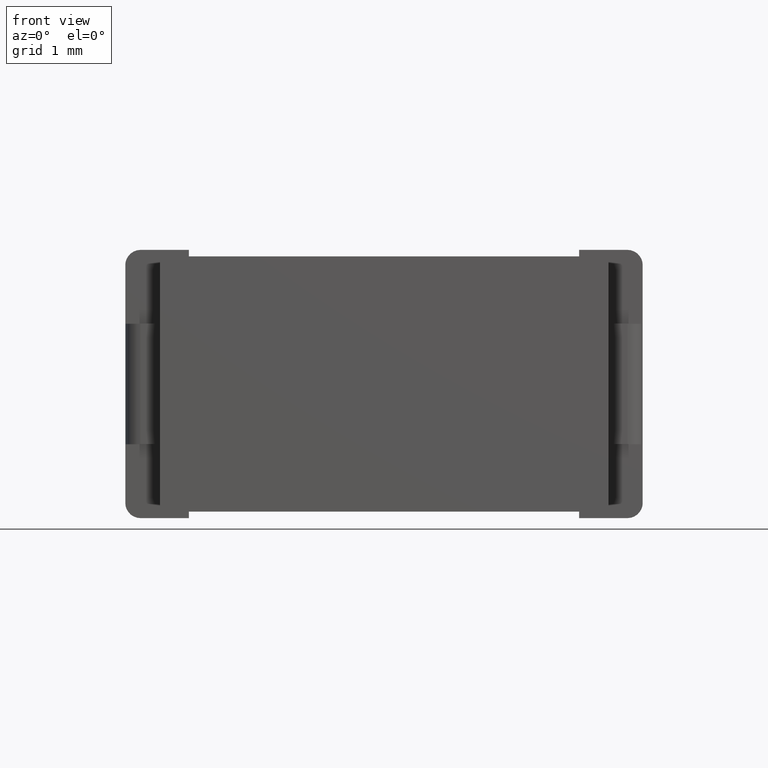
[diagram: clean part render]
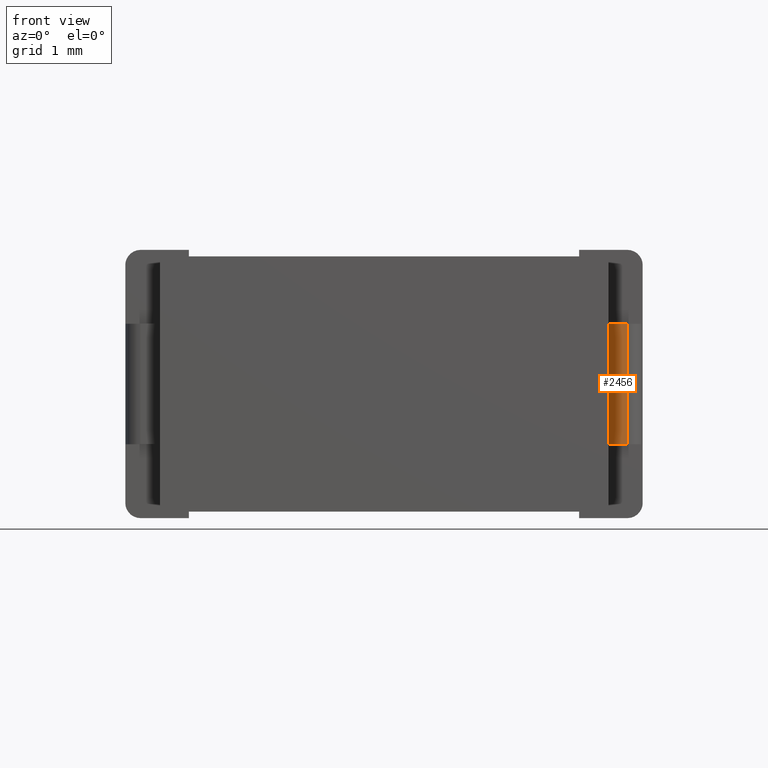
[diagram: same view with one face highlighted and labeled with its STEP entity id]
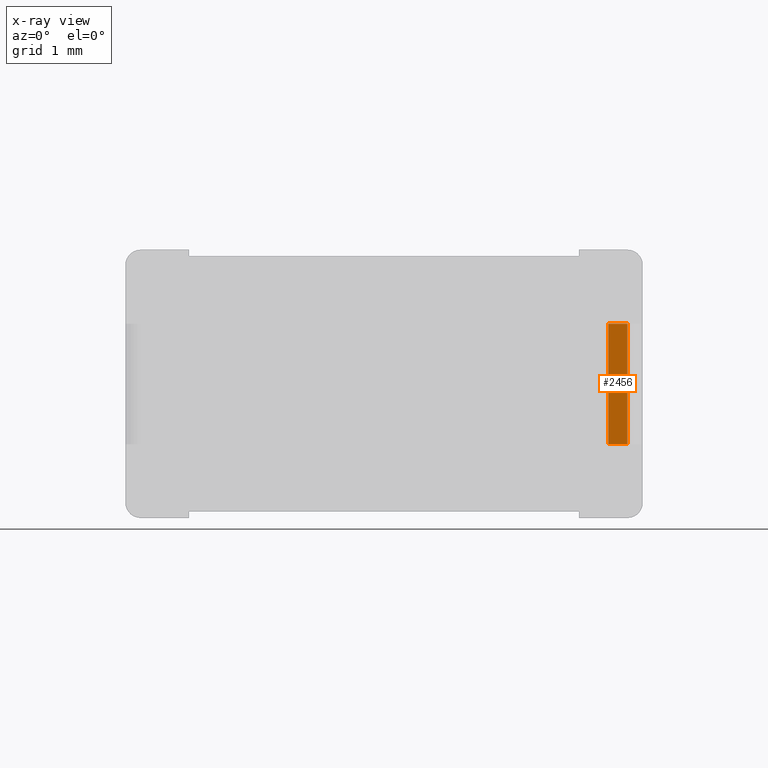
[diagram: x-ray of the same camera — body ghosted, the highlighted face saturated]
A machine part, front view. The second image highlights one B-rep face of the part: STEP entity #2456.
The next image is the same camera in x-ray: the body ghosted, the highlighted face saturated — about 0% of this face is hidden behind the body in this view.
In plain terms, the highlighted planar face has unit normal (0, -1, 0).
Its self-contained STEP definition (entity closure, byte-faithful):
#80 = DIRECTION ( 'NONE',  ( 0.000000000000000000, 0.000000000000000000, -1.000000000000000000 ) ) ;
#240 = ORIENTED_EDGE ( 'NONE', *, *, #3551, .T. ) ;
#270 = VECTOR ( 'NONE', #80, 1000.000000000000000 ) ;
#519 = DIRECTION ( 'NONE',  ( 0.000000000000000000, -0.000000000000000000, -1.000000000000000000 ) ) ;
#539 = VERTEX_POINT ( 'NONE', #1418 ) ;
#711 = VECTOR ( 'NONE', #4590, 1000.000000000000000 ) ;
#764 = EDGE_LOOP ( 'NONE', ( #2630, #3719, #1117, #240 ) ) ;
#784 = CARTESIAN_POINT ( 'NONE',  ( 6.778000000000001357, 1.613326539126285208, -0.9767999999999998906 ) ) ;
#912 = FACE_OUTER_BOUND ( 'NONE', #764, .T. ) ;
#934 = CARTESIAN_POINT ( 'NONE',  ( 6.342105263157895578, 1.613326539126285208, -0.9767999999999998906 ) ) ;
#1117 = ORIENTED_EDGE ( 'NONE', *, *, #3647, .F. ) ;
#1256 = DIRECTION ( 'NONE',  ( 0.000000000000000000, -1.000000000000000000, 0.000000000000000000 ) ) ;
#1307 = VECTOR ( 'NONE', #3029, 1000.000000000000000 ) ;
#1418 = CARTESIAN_POINT ( 'NONE',  ( 6.500000000000000000, 1.613326539126285208, -2.723200000000000287 ) ) ;
#1457 = VECTOR ( 'NONE', #4427, 1000.000000000000000 ) ;
#1843 = LINE ( 'NONE', #3274, #270 ) ;
#2322 = CARTESIAN_POINT ( 'NONE',  ( 6.342105263157895578, 1.613326539126285208, -0.9767999999999998906 ) ) ;
#2456 = ADVANCED_FACE ( 'NONE', ( #912 ), #2637, .T. ) ;
#2488 = AXIS2_PLACEMENT_3D ( 'NONE', #2322, #1256, #519 ) ;
#2630 = ORIENTED_EDGE ( 'NONE', *, *, #3787, .T. ) ;
#2637 = PLANE ( 'NONE',  #2488 ) ;
#2680 = VERTEX_POINT ( 'NONE', #784 ) ;
#2811 = LINE ( 'NONE', #4074, #1307 ) ;
#3029 = DIRECTION ( 'NONE',  ( -0.000000000000000000, -0.000000000000000000, 1.000000000000000000 ) ) ;
#3075 = VERTEX_POINT ( 'NONE', #4435 ) ;
#3274 = CARTESIAN_POINT ( 'NONE',  ( 6.500000000000000000, 1.613326539126285208, -3.700000000000000178 ) ) ;
#3501 = CARTESIAN_POINT ( 'NONE',  ( 6.342105263157895578, 1.613326539126285208, -2.723200000000000287 ) ) ;
#3551 = EDGE_CURVE ( 'NONE', #3075, #539, #1843, .T. ) ;
#3557 = CARTESIAN_POINT ( 'NONE',  ( 6.778000000000001357, 1.613326539126285208, -2.723200000000000287 ) ) ;
#3647 = EDGE_CURVE ( 'NONE', #3075, #2680, #4448, .T. ) ;
#3719 = ORIENTED_EDGE ( 'NONE', *, *, #3935, .T. ) ;
#3787 = EDGE_CURVE ( 'NONE', #539, #4451, #3854, .T. ) ;
#3854 = LINE ( 'NONE', #3501, #711 ) ;
#3935 = EDGE_CURVE ( 'NONE', #4451, #2680, #2811, .T. ) ;
#4074 = CARTESIAN_POINT ( 'NONE',  ( 6.778000000000001357, 1.613326539126285208, -0.9767999999999998906 ) ) ;
#4427 = DIRECTION ( 'NONE',  ( 1.000000000000000000, 0.000000000000000000, 0.000000000000000000 ) ) ;
#4435 = CARTESIAN_POINT ( 'NONE',  ( 6.500000000000000000, 1.613326539126285208, -0.9768000000000003347 ) ) ;
#4448 = LINE ( 'NONE', #934, #1457 ) ;
#4451 = VERTEX_POINT ( 'NONE', #3557 ) ;
#4590 = DIRECTION ( 'NONE',  ( 1.000000000000000000, 0.000000000000000000, 0.000000000000000000 ) ) ;